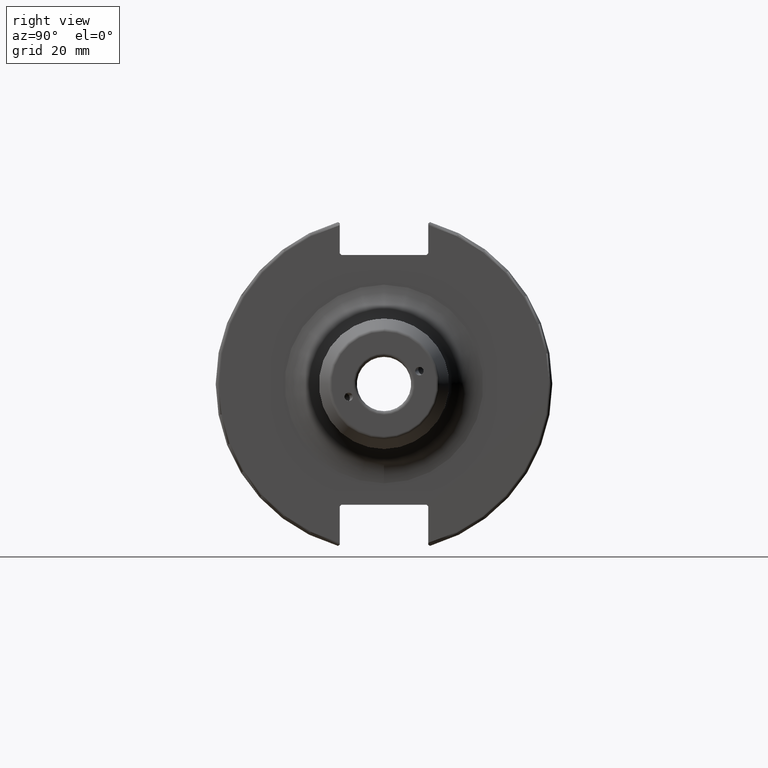
[diagram: clean part render]
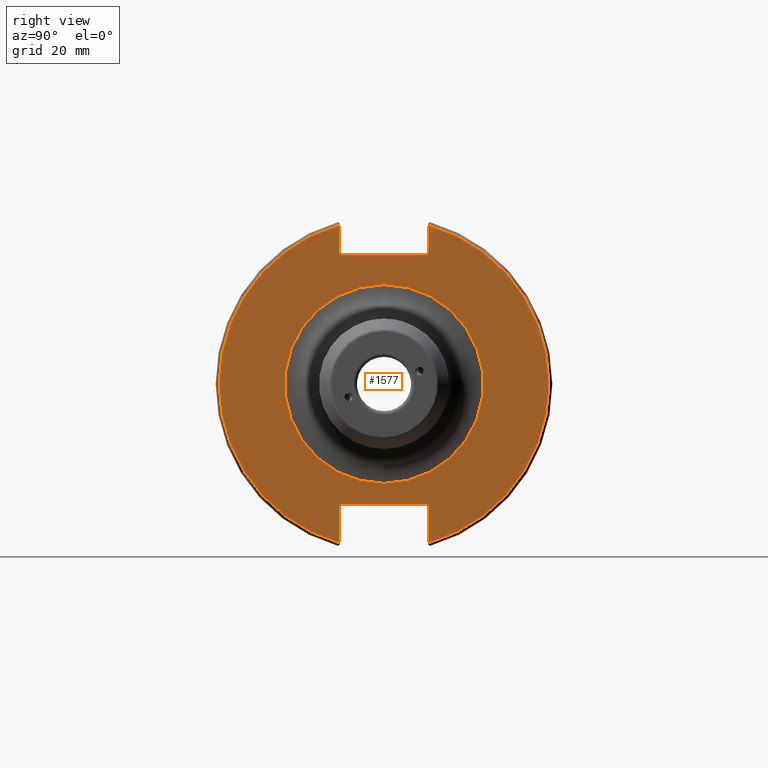
[diagram: same view with one face highlighted and labeled with its STEP entity id]
A machine part, right view. The second image highlights one B-rep face of the part: STEP entity #1577.
In plain terms, the highlighted planar face has unit normal (1, 0, 0).
Its self-contained STEP definition (entity closure, byte-faithful):
#35=FACE_BOUND('',#300,.T.);
#81=PLANE('',#1712);
#136=CIRCLE('',#1711,29.05);
#137=CIRCLE('',#1713,48.2125);
#138=CIRCLE('',#1714,48.2125);
#207=FACE_OUTER_BOUND('',#299,.T.);
#299=EDGE_LOOP('',(#1136,#1137,#1138,#1139,#1140,#1141,#1142,#1143,#1144,
#1145,#1146,#1147));
#300=EDGE_LOOP('',(#1148));
#453=LINE('',#2538,#549);
#454=LINE('',#2540,#550);
#455=LINE('',#2542,#551);
#456=LINE('',#2544,#552);
#457=LINE('',#2546,#553);
#458=LINE('',#2550,#554);
#459=LINE('',#2552,#555);
#460=LINE('',#2554,#556);
#461=LINE('',#2556,#557);
#462=LINE('',#2557,#558);
#549=VECTOR('',#1937,10.);
#550=VECTOR('',#1938,10.);
#551=VECTOR('',#1939,10.);
#552=VECTOR('',#1940,10.);
#553=VECTOR('',#1941,10.);
#554=VECTOR('',#1944,10.);
#555=VECTOR('',#1945,10.);
#556=VECTOR('',#1946,10.);
#557=VECTOR('',#1947,10.);
#558=VECTOR('',#1948,10.);
#670=VERTEX_POINT('',#2530);
#671=VERTEX_POINT('',#2534);
#672=VERTEX_POINT('',#2535);
#673=VERTEX_POINT('',#2537);
#674=VERTEX_POINT('',#2539);
#675=VERTEX_POINT('',#2541);
#676=VERTEX_POINT('',#2543);
#677=VERTEX_POINT('',#2545);
#678=VERTEX_POINT('',#2547);
#679=VERTEX_POINT('',#2549);
#680=VERTEX_POINT('',#2551);
#681=VERTEX_POINT('',#2553);
#682=VERTEX_POINT('',#2555);
#850=EDGE_CURVE('',#670,#670,#136,.T.);
#851=EDGE_CURVE('',#671,#672,#137,.T.);
#852=EDGE_CURVE('',#671,#673,#453,.T.);
#853=EDGE_CURVE('',#674,#673,#454,.T.);
#854=EDGE_CURVE('',#674,#675,#455,.T.);
#855=EDGE_CURVE('',#676,#675,#456,.T.);
#856=EDGE_CURVE('',#676,#677,#457,.T.);
#857=EDGE_CURVE('',#678,#677,#138,.T.);
#858=EDGE_CURVE('',#678,#679,#458,.T.);
#859=EDGE_CURVE('',#680,#679,#459,.T.);
#860=EDGE_CURVE('',#680,#681,#460,.T.);
#861=EDGE_CURVE('',#682,#681,#461,.T.);
#862=EDGE_CURVE('',#682,#672,#462,.T.);
#1136=ORIENTED_EDGE('',*,*,#851,.F.);
#1137=ORIENTED_EDGE('',*,*,#852,.T.);
#1138=ORIENTED_EDGE('',*,*,#853,.F.);
#1139=ORIENTED_EDGE('',*,*,#854,.T.);
#1140=ORIENTED_EDGE('',*,*,#855,.F.);
#1141=ORIENTED_EDGE('',*,*,#856,.T.);
#1142=ORIENTED_EDGE('',*,*,#857,.F.);
#1143=ORIENTED_EDGE('',*,*,#858,.T.);
#1144=ORIENTED_EDGE('',*,*,#859,.F.);
#1145=ORIENTED_EDGE('',*,*,#860,.T.);
#1146=ORIENTED_EDGE('',*,*,#861,.F.);
#1147=ORIENTED_EDGE('',*,*,#862,.T.);
#1148=ORIENTED_EDGE('',*,*,#850,.F.);
#1577=ADVANCED_FACE('',(#207,#35),#81,.T.);
#1711=AXIS2_PLACEMENT_3D('',#2532,#1931,#1932);
#1712=AXIS2_PLACEMENT_3D('',#2533,#1933,#1934);
#1713=AXIS2_PLACEMENT_3D('',#2536,#1935,#1936);
#1714=AXIS2_PLACEMENT_3D('',#2548,#1942,#1943);
#1931=DIRECTION('center_axis',(1.,0.,0.));
#1932=DIRECTION('ref_axis',(0.,1.22464679914735E-16,-1.));
#1933=DIRECTION('center_axis',(1.,0.,0.));
#1934=DIRECTION('ref_axis',(0.,0.,-1.));
#1935=DIRECTION('center_axis',(-1.,0.,0.));
#1936=DIRECTION('ref_axis',(0.,1.,-6.12323399573677E-17));
#1937=DIRECTION('',(0.,0.,-1.));
#1938=DIRECTION('',(0.,0.707106781186549,0.707106781186546));
#1939=DIRECTION('',(0.,-1.,0.));
#1940=DIRECTION('',(0.,0.707106781186549,-0.707106781186546));
#1941=DIRECTION('',(0.,0.,1.));
#1942=DIRECTION('center_axis',(-1.,0.,0.));
#1943=DIRECTION('ref_axis',(0.,-1.,1.60812264967664E-16));
#1944=DIRECTION('',(0.,0.,1.));
#1945=DIRECTION('',(0.,-0.707106781186549,-0.707106781186546));
#1946=DIRECTION('',(0.,1.,0.));
#1947=DIRECTION('',(0.,-0.707106781186549,0.707106781186546));
#1948=DIRECTION('',(0.,0.,-1.));
#2530=CARTESIAN_POINT('',(19.05,-3.55759895152306E-15,-29.05));
#2532=CARTESIAN_POINT('Origin',(19.05,0.,0.));
#2533=CARTESIAN_POINT('Origin',(19.05,0.,0.));
#2534=CARTESIAN_POINT('',(19.05,12.95,46.4407434937254));
#2535=CARTESIAN_POINT('',(19.05,12.95,-46.4407434937254));
#2536=CARTESIAN_POINT('Origin',(19.05,0.,0.));
#2537=CARTESIAN_POINT('',(19.05,12.95,38.219));
#2538=CARTESIAN_POINT('',(19.05,12.95,18.8595));
#2539=CARTESIAN_POINT('',(19.05,12.45,37.719));
#2540=CARTESIAN_POINT('',(19.05,0.0327499999999836,25.30175));
#2541=CARTESIAN_POINT('',(19.05,-12.45,37.719));
#2542=CARTESIAN_POINT('',(19.05,0.,37.719));
#2543=CARTESIAN_POINT('',(19.05,-12.95,38.219));
#2544=CARTESIAN_POINT('',(19.05,-0.0327499999999817,25.30175));
#2545=CARTESIAN_POINT('',(19.05,-12.95,46.4407434937254));
#2546=CARTESIAN_POINT('',(19.05,-12.95,18.8595));
#2547=CARTESIAN_POINT('',(19.05,-12.95,-46.4407434937254));
#2548=CARTESIAN_POINT('Origin',(19.05,0.,0.));
#2549=CARTESIAN_POINT('',(19.05,-12.95,-35.806));
#2550=CARTESIAN_POINT('',(19.05,-12.95,-17.653));
#2551=CARTESIAN_POINT('',(19.05,-12.45,-35.306));
#2552=CARTESIAN_POINT('',(19.05,-0.635999999999989,-23.492));
#2553=CARTESIAN_POINT('',(19.05,12.45,-35.306));
#2554=CARTESIAN_POINT('',(19.05,-3.33066907387547E-15,-35.306));
#2555=CARTESIAN_POINT('',(19.05,12.95,-35.806));
#2556=CARTESIAN_POINT('',(19.05,0.635999999999982,-23.492));
#2557=CARTESIAN_POINT('',(19.05,12.95,-17.653));